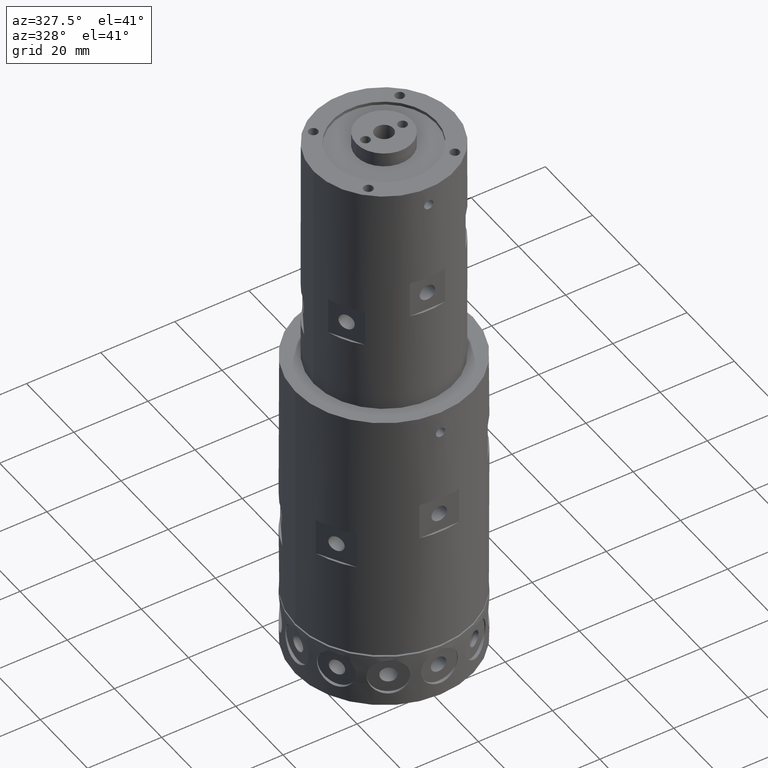
[diagram: clean part render]
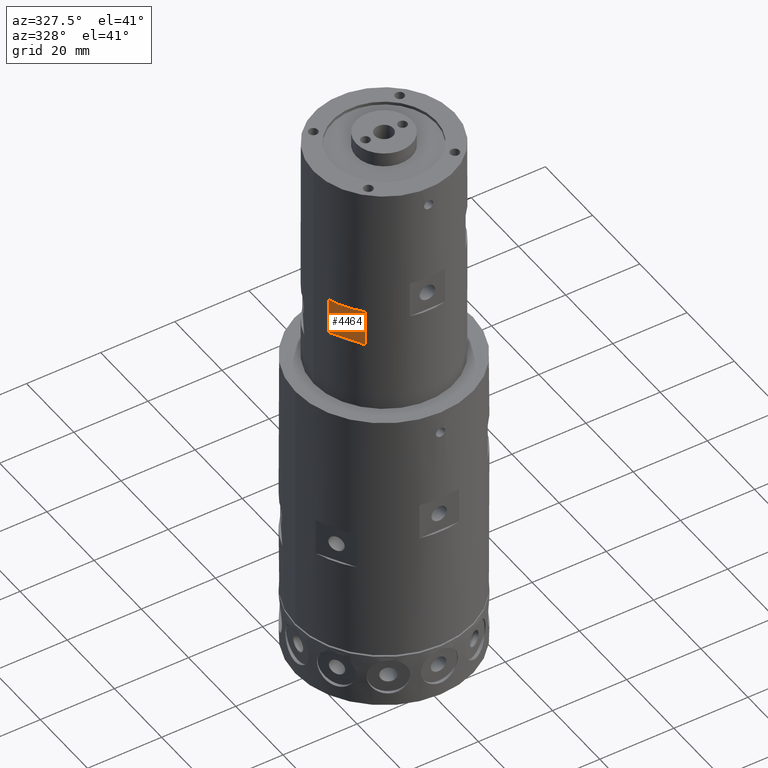
[diagram: same view with one face highlighted and labeled with its STEP entity id]
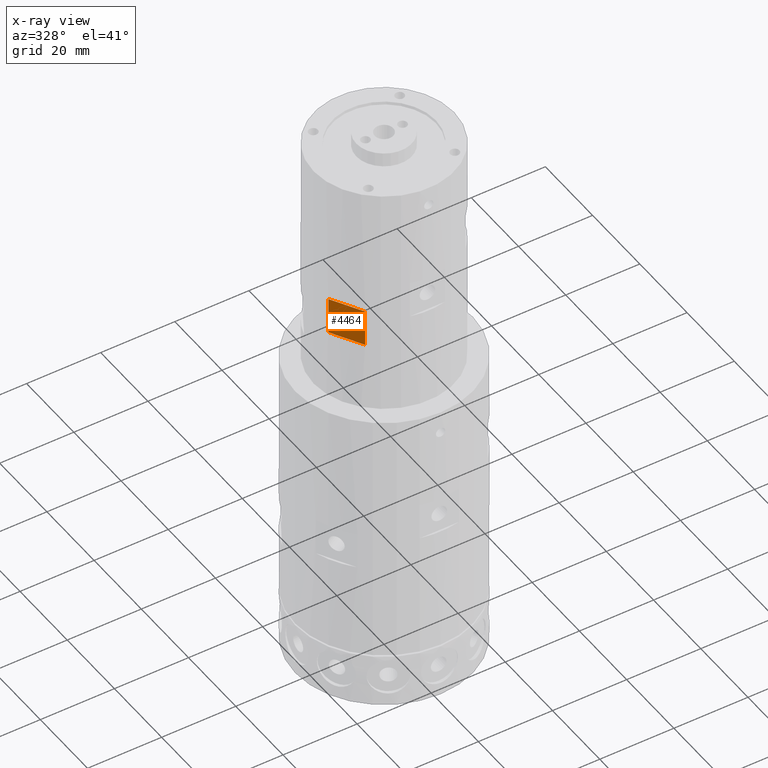
[diagram: x-ray of the same camera — body ghosted, the highlighted face saturated]
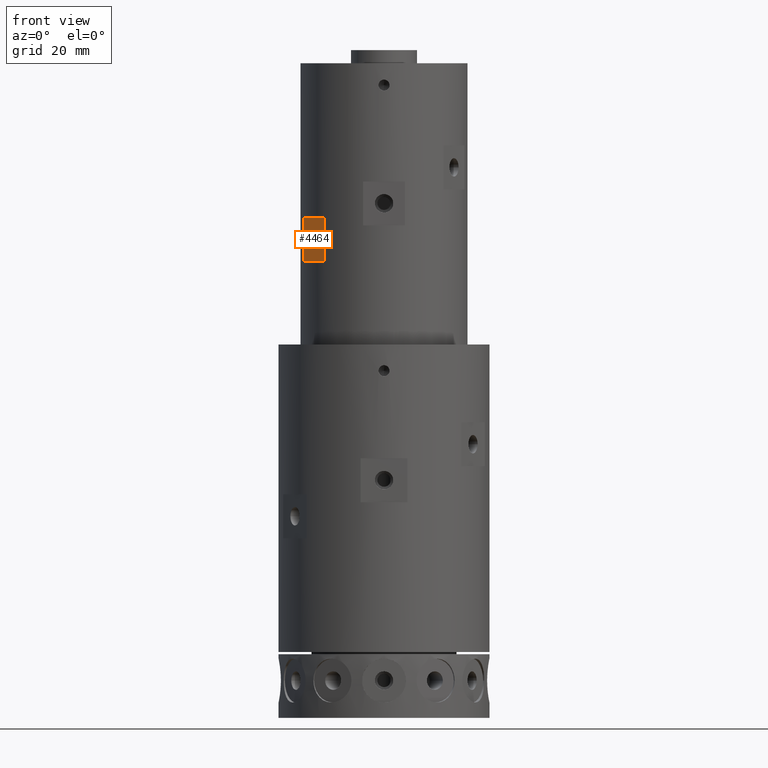
[diagram: same view with one face highlighted and labeled with its STEP entity id]
A machine part, auxiliary view. The second image highlights one B-rep face of the part: STEP entity #4464.
The next image is the same camera in x-ray: the body ghosted, the highlighted face saturated — about 0% of this face is hidden behind the body in this view.
A second angle (front view) of the same face is appended — the face is thin or edge-on in the first view.
In plain terms, the highlighted planar face has unit normal (0.866, 0.5, -0).
Its self-contained STEP definition (entity closure, byte-faithful):
#39 = LINE ( 'NONE', #2087, #9955 ) ;
#282 = CARTESIAN_POINT ( 'NONE',  ( -15.93486742963375500, -9.199999999999857200, 108.9000000000000100 ) ) ;
#503 = CARTESIAN_POINT ( 'NONE',  ( -13.56632357316838400, -13.30243829935309000, 103.9000000000000100 ) ) ;
#572 = VERTEX_POINT ( 'NONE', #9729 ) ;
#894 = DIRECTION ( 'NONE',  ( 0.0000000000000000000, 0.0000000000000000000, 1.000000000000000000 ) ) ;
#1028 = FACE_BOUND ( 'NONE', #3069, .T. ) ;
#1069 = DIRECTION ( 'NONE',  ( 0.4999999999999916700, -0.8660254037844434800, 0.0000000000000000000 ) ) ;
#1399 = CARTESIAN_POINT ( 'NONE',  ( -14.88486742963377200, -11.01865334794718600, 108.9000000000000100 ) ) ;
#1526 = ORIENTED_EDGE ( 'NONE', *, *, #5044, .F. ) ;
#1863 = VECTOR ( 'NONE', #894, 1000.000000000000000 ) ;
#2087 = CARTESIAN_POINT ( 'NONE',  ( -11.95286441876522700, -16.09703153071654200, 113.9000000000000100 ) ) ;
#2502 = EDGE_LOOP ( 'NONE', ( #7957, #6588, #8596, #6957 ) ) ;
#2526 = LINE ( 'NONE', #4122, #3888 ) ;
#2598 = CIRCLE ( 'NONE', #8286, 2.099999999999991200 ) ;
#2830 = CIRCLE ( 'NONE', #5237, 2.099999999999991200 ) ;
#2865 = CARTESIAN_POINT ( 'NONE',  ( -13.56632357316838300, -13.30243829935309000, 149.0000000000000300 ) ) ;
#3069 = EDGE_LOOP ( 'NONE', ( #6087, #1526 ) ) ;
#3228 = EDGE_CURVE ( 'NONE', #5391, #572, #7873, .T. ) ;
#3369 = CARTESIAN_POINT ( 'NONE',  ( -15.93486742963375500, -9.199999999999857200, 108.9000000000000100 ) ) ;
#3403 = AXIS2_PLACEMENT_3D ( 'NONE', #7153, #8734, #4048 ) ;
#3727 = VERTEX_POINT ( 'NONE', #503 ) ;
#3888 = VECTOR ( 'NONE', #4881, 1000.000000000000100 ) ;
#4045 = CARTESIAN_POINT ( 'NONE',  ( -18.30341128609912700, -5.097561700646615200, 149.0000000000000300 ) ) ;
#4048 = DIRECTION ( 'NONE',  ( -0.4999999999999919500, 0.8660254037844432600, 0.0000000000000000000 ) ) ;
#4122 = CARTESIAN_POINT ( 'NONE',  ( -11.95286441876522500, -16.09703153071654200, 103.9000000000000100 ) ) ;
#4175 = DIRECTION ( 'NONE',  ( 0.4999999999999916700, -0.8660254037844434800, 0.0000000000000000000 ) ) ;
#4445 = DIRECTION ( 'NONE',  ( -0.0000000000000000000, -0.0000000000000000000, -1.000000000000000000 ) ) ;
#4464 = ADVANCED_FACE ( 'NONE', ( #1028, #7026 ), #5577, .F. ) ;
#4650 = VERTEX_POINT ( 'NONE', #8982 ) ;
#4651 = CARTESIAN_POINT ( 'NONE',  ( -18.30341128609913100, -5.097561700646616100, 103.9000000000000100 ) ) ;
#4743 = CARTESIAN_POINT ( 'NONE',  ( -13.56632357316838400, -13.30243829935309200, 113.9000000000000100 ) ) ;
#4881 = DIRECTION ( 'NONE',  ( 0.4999999999999920100, -0.8660254037844431500, -0.0000000000000000000 ) ) ;
#5044 = EDGE_CURVE ( 'NONE', #4650, #6769, #2598, .T. ) ;
#5237 = AXIS2_PLACEMENT_3D ( 'NONE', #282, #5754, #1069 ) ;
#5391 = VERTEX_POINT ( 'NONE', #4651 ) ;
#5577 = PLANE ( 'NONE',  #3403 ) ;
#5587 = EDGE_CURVE ( 'NONE', #6769, #4650, #2830, .T. ) ;
#5701 = EDGE_CURVE ( 'NONE', #9470, #572, #39, .T. ) ;
#5706 = EDGE_CURVE ( 'NONE', #9470, #3727, #9702, .T. ) ;
#5754 = DIRECTION ( 'NONE',  ( -0.8660254037844433700, -0.4999999999999921200, -0.0000000000000000000 ) ) ;
#6087 = ORIENTED_EDGE ( 'NONE', *, *, #5587, .F. ) ;
#6500 = EDGE_CURVE ( 'NONE', #5391, #3727, #2526, .T. ) ;
#6588 = ORIENTED_EDGE ( 'NONE', *, *, #3228, .F. ) ;
#6769 = VERTEX_POINT ( 'NONE', #1399 ) ;
#6776 = DIRECTION ( 'NONE',  ( -0.4999999999999919500, 0.8660254037844432600, 0.0000000000000000000 ) ) ;
#6957 = ORIENTED_EDGE ( 'NONE', *, *, #5706, .F. ) ;
#7026 = FACE_OUTER_BOUND ( 'NONE', #2502, .T. ) ;
#7153 = CARTESIAN_POINT ( 'NONE',  ( -19.91687044050228600, -2.302968469283163800, 113.9000000000000100 ) ) ;
#7619 = VECTOR ( 'NONE', #4445, 1000.000000000000000 ) ;
#7873 = LINE ( 'NONE', #4045, #1863 ) ;
#7957 = ORIENTED_EDGE ( 'NONE', *, *, #5701, .T. ) ;
#8286 = AXIS2_PLACEMENT_3D ( 'NONE', #3369, #8859, #4175 ) ;
#8596 = ORIENTED_EDGE ( 'NONE', *, *, #6500, .T. ) ;
#8734 = DIRECTION ( 'NONE',  ( 0.8660254037844432600, 0.4999999999999919500, -1.162044386198060400E-017 ) ) ;
#8859 = DIRECTION ( 'NONE',  ( -0.8660254037844433700, -0.4999999999999921200, -0.0000000000000000000 ) ) ;
#8982 = CARTESIAN_POINT ( 'NONE',  ( -16.98486742963373400, -7.381346652052529000, 108.9000000000000100 ) ) ;
#9470 = VERTEX_POINT ( 'NONE', #4743 ) ;
#9702 = LINE ( 'NONE', #2865, #7619 ) ;
#9729 = CARTESIAN_POINT ( 'NONE',  ( -18.30341128609912700, -5.097561700646615200, 113.9000000000000100 ) ) ;
#9955 = VECTOR ( 'NONE', #6776, 1000.000000000000000 ) ;